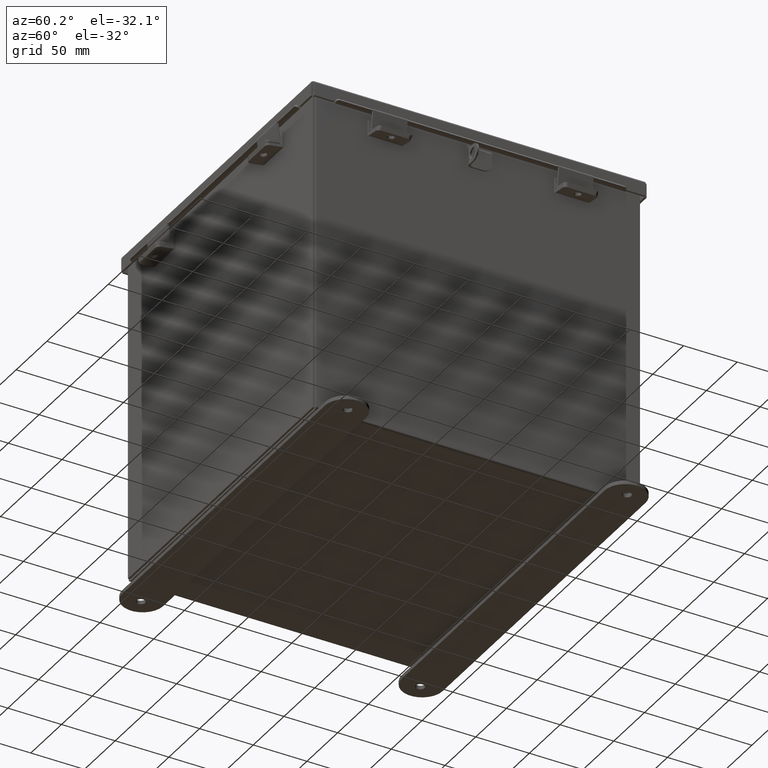
[diagram: clean part render]
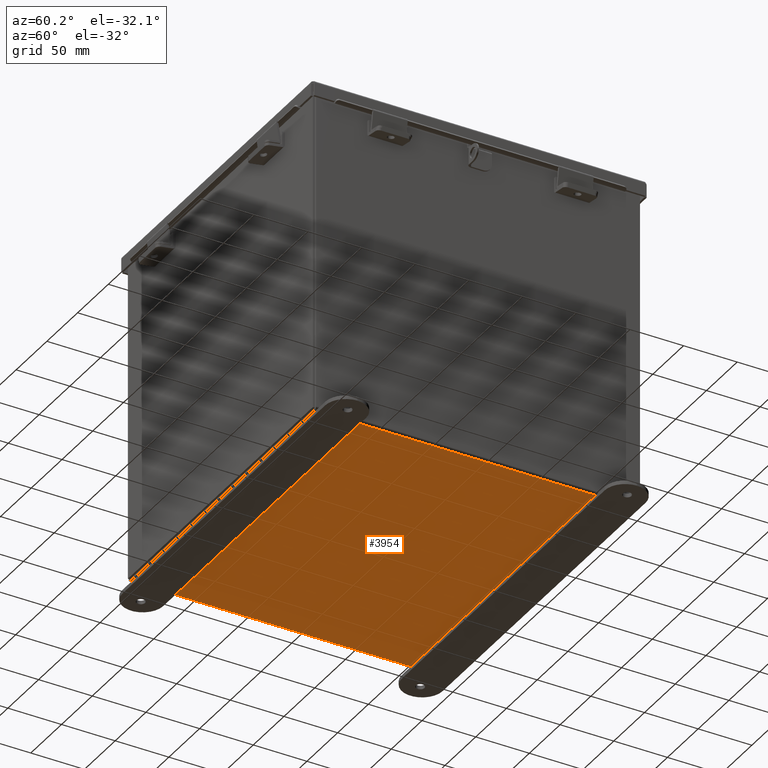
[diagram: same view with one face highlighted and labeled with its STEP entity id]
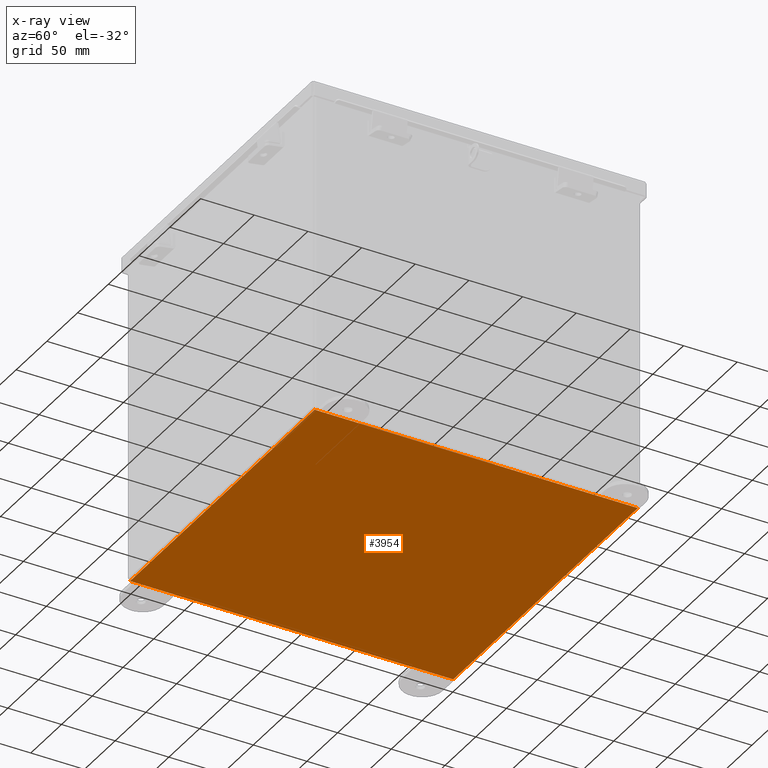
[diagram: x-ray of the same camera — body ghosted, the highlighted face saturated]
A machine part, auxiliary view. The second image highlights one B-rep face of the part: STEP entity #3954.
The next image is the same camera in x-ray: the body ghosted, the highlighted face saturated — about 0% of this face is hidden behind the body in this view.
In plain terms, the highlighted planar face has unit normal (0, 0, -1).
Its self-contained STEP definition (entity closure, byte-faithful):
#914 = ORIENTED_EDGE ( 'NONE', *, *, #2627, .F. ) ;
#1063 = CARTESIAN_POINT ( 'NONE',  ( -5.999999999999998200, -5.925300000000000000, -0.07470000000000000300 ) ) ;
#1847 = CARTESIAN_POINT ( 'NONE',  ( -5.912299999999998300, -5.925299999999999100, -0.07469999999999994700 ) ) ;
#1995 = CARTESIAN_POINT ( 'NONE',  ( 0.0000000000000000000, 0.0000000000000000000, -0.07470000000000000300 ) ) ;
#2130 = LINE ( 'NONE', #3508, #2520 ) ;
#2520 = VECTOR ( 'NONE', #8481, 39.37007874015748100 ) ;
#2614 = DIRECTION ( 'NONE',  ( -0.0000000000000000000, 1.000000000000000000, -0.0000000000000000000 ) ) ;
#2615 = ORIENTED_EDGE ( 'NONE', *, *, #4070, .F. ) ;
#2627 = EDGE_CURVE ( 'NONE', #3816, #4502, #7682, .T. ) ;
#2809 = CARTESIAN_POINT ( 'NONE',  ( 5.912300000000002800, 5.925299999999997300, -0.07469999999999994700 ) ) ;
#3073 = VECTOR ( 'NONE', #2614, 39.37007874015748100 ) ;
#3508 = CARTESIAN_POINT ( 'NONE',  ( 5.912300000000002800, 5.925300000000000000, -0.07469999999999994700 ) ) ;
#3752 = FACE_OUTER_BOUND ( 'NONE', #12647, .T. ) ;
#3816 = VERTEX_POINT ( 'NONE', #2809 ) ;
#3954 = ADVANCED_FACE ( 'NONE', ( #3752 ), #11870, .T. ) ;
#4070 = EDGE_CURVE ( 'NONE', #6798, #8569, #14564, .T. ) ;
#4502 = VERTEX_POINT ( 'NONE', #7571 ) ;
#5493 = VECTOR ( 'NONE', #9693, 39.37007874015748100 ) ;
#5703 = DIRECTION ( 'NONE',  ( 0.0000000000000000000, 0.0000000000000000000, -1.000000000000000000 ) ) ;
#5891 = CARTESIAN_POINT ( 'NONE',  ( -5.999999999999998200, 5.925300000000000000, -0.07470000000000000300 ) ) ;
#6182 = CARTESIAN_POINT ( 'NONE',  ( 5.912300000000002800, -5.925300000000000000, -0.07470000000000000300 ) ) ;
#6421 = EDGE_CURVE ( 'NONE', #3816, #8569, #2130, .T. ) ;
#6515 = EDGE_CURVE ( 'NONE', #6798, #4502, #6768, .T. ) ;
#6768 = LINE ( 'NONE', #13691, #3073 ) ;
#6798 = VERTEX_POINT ( 'NONE', #1847 ) ;
#7517 = AXIS2_PLACEMENT_3D ( 'NONE', #1995, #5703, #14345 ) ;
#7571 = CARTESIAN_POINT ( 'NONE',  ( -5.912299999999998300, 5.925300000000000000, -0.07470000000000000300 ) ) ;
#7682 = LINE ( 'NONE', #5891, #10935 ) ;
#8115 = ORIENTED_EDGE ( 'NONE', *, *, #6515, .T. ) ;
#8481 = DIRECTION ( 'NONE',  ( -0.0000000000000000000, -1.000000000000000000, -0.0000000000000000000 ) ) ;
#8569 = VERTEX_POINT ( 'NONE', #6182 ) ;
#9693 = DIRECTION ( 'NONE',  ( 1.000000000000000000, 0.0000000000000000000, 0.0000000000000000000 ) ) ;
#10430 = ORIENTED_EDGE ( 'NONE', *, *, #6421, .T. ) ;
#10935 = VECTOR ( 'NONE', #13316, 39.37007874015748100 ) ;
#11870 = PLANE ( 'NONE',  #7517 ) ;
#12647 = EDGE_LOOP ( 'NONE', ( #914, #10430, #2615, #8115 ) ) ;
#13316 = DIRECTION ( 'NONE',  ( -1.000000000000000000, -0.0000000000000000000, -0.0000000000000000000 ) ) ;
#13691 = CARTESIAN_POINT ( 'NONE',  ( -5.912299999999998300, -5.925300000000000000, -0.07469999999999994700 ) ) ;
#14345 = DIRECTION ( 'NONE',  ( -1.000000000000000000, 0.0000000000000000000, -0.0000000000000000000 ) ) ;
#14564 = LINE ( 'NONE', #1063, #5493 ) ;